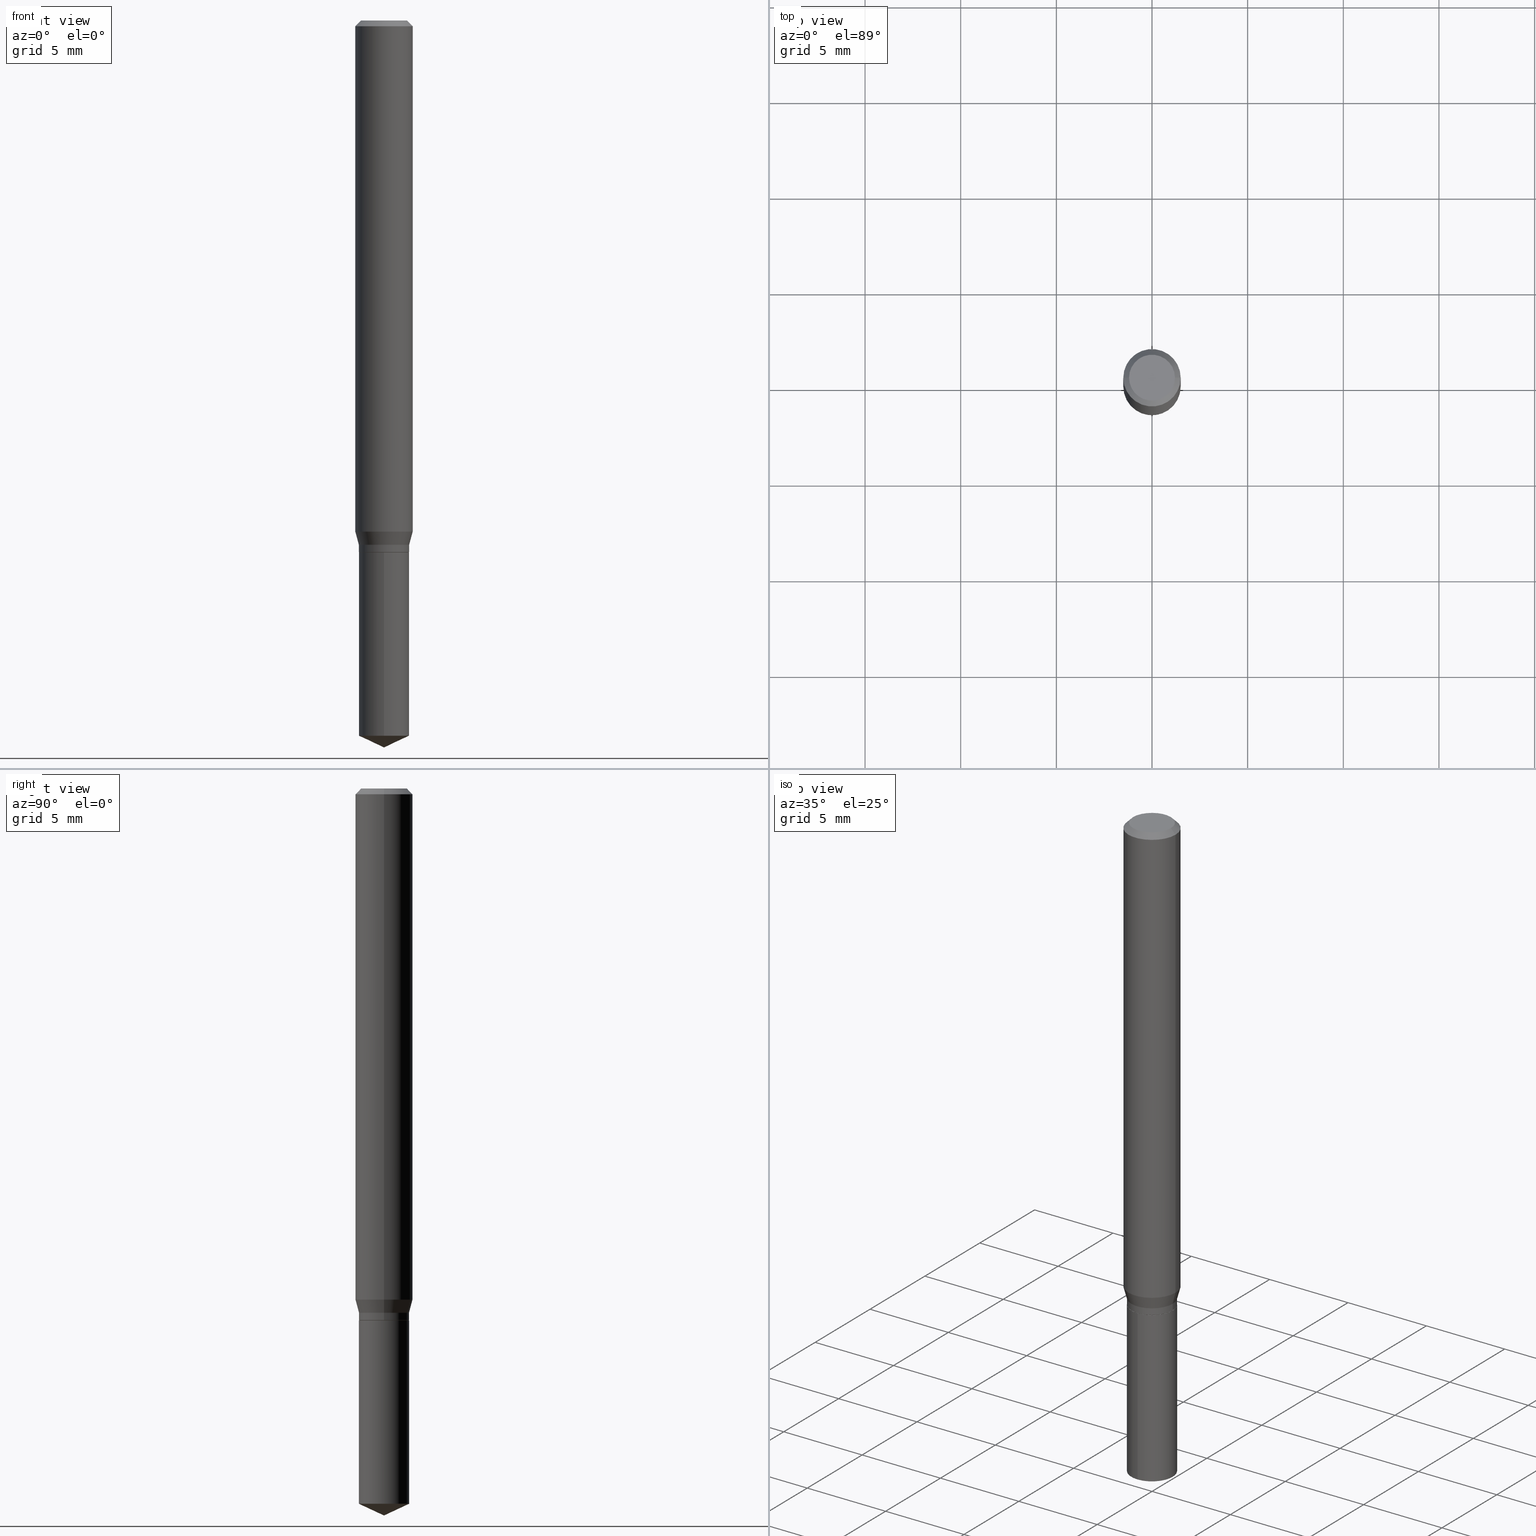
[diagram: canonical four-view strip — front | top / right | iso, engineering-drawing reading convention]
A machine part, canonical four-view strip (front | top / right | iso — engineering-drawing reading convention). The complete STEP part file that produces these views, byte-faithful:
ISO-10303-21;
HEADER;
FILE_DESCRIPTION (( 'STEP AP203' ),
    '1' );
FILE_NAME ('07676.STEP',
    '2024-04-24T00:50:57',
    ( '' ),
    ( '' ),
    'SwSTEP 2.0',
    'SolidWorks 2023',
    '' );
FILE_SCHEMA (( 'CONFIG_CONTROL_DESIGN' ));
ENDSEC;

DATA;
#1 = APPROVAL_DATE_TIME ( #174, #138 ) ;
#2 = CC_DESIGN_PERSON_AND_ORGANIZATION_ASSIGNMENT ( #187, #148, ( #243 ) ) ;
#3 = PERSON_AND_ORGANIZATION ( #69, #470 ) ;
#4 = DIRECTION ( 'NONE',  ( 1.000000000000000000, -6.982962677686271444E-15, 0.000000000000000000 ) ) ;
#5 = CARTESIAN_POINT ( 'NONE',  ( 2.888098660104664204E-31, -4.123439461173780263E-17, -0.01181000000000007218 ) ) ;
#6 = CIRCLE ( 'NONE', #269, 0.05175000000000000433 ) ;
#7 = CARTESIAN_POINT ( 'NONE',  ( 0.05905000000000013016, -4.084530494752366346E-15, -1.051756029104746748 ) ) ;
#8 = ORIENTED_EDGE ( 'NONE', *, *, #319, .F. ) ;
#9 = EDGE_CURVE ( 'NONE', #220, #147, #323, .T. ) ;
#10 = DESIGN_CONTEXT ( 'detailed design', #477, 'design' ) ;
#11 = DIRECTION ( 'NONE',  ( -2.445468806185136597E-29, 3.491481338843145583E-15, 1.000000000000000000 ) ) ;
#12 = FACE_OUTER_BOUND ( 'NONE', #222, .T. ) ;
#13 = DIRECTION ( 'NONE',  ( 1.000000000000000000, 0.000000000000000000, 0.000000000000000000 ) ) ;
#14 = VERTEX_POINT ( 'NONE', #7 ) ;
#15 = CLOSED_SHELL ( 'NONE', ( #334, #105, #398, #79, #226, #328, #189, #155, #420, #352, #405, #278 ) ) ;
#16 = AXIS2_PLACEMENT_3D ( 'NONE', #427, #344, #432 ) ;
#17 = CARTESIAN_POINT ( 'NONE',  ( 0.000000000000000000, 0.000000000000000000, 0.000000000000000000 ) ) ;
#18 = CYLINDRICAL_SURFACE ( 'NONE', #396, 0.05175000000000000433 ) ;
#19 = CYLINDRICAL_SURFACE ( 'NONE', #217, 0.05905000000000006771 ) ;
#20 = DIRECTION ( 'NONE',  ( 1.000000000000000000, -6.982962677686265133E-15, 0.000000000000000000 ) ) ;
#21 = EDGE_CURVE ( 'NONE', #147, #180, #290, .T. ) ;
#22 = LINE ( 'NONE', #90, #114 ) ;
#23 = LINE ( 'NONE', #336, #245 ) ;
#24 = EDGE_LOOP ( 'NONE', ( #167, #267, #463, #305 ) ) ;
#25 = LINE ( 'NONE', #163, #195 ) ;
#26 = CARTESIAN_POINT ( 'NONE',  ( 2.676565608369631794E-29, -3.821426325363822773E-15, -1.094499999999999806 ) ) ;
#27 = ORIENTED_EDGE ( 'NONE', *, *, #289, .F. ) ;
#28 = AXIS2_PLACEMENT_3D ( 'NONE', #5, #377, #170 ) ;
#29 = DIRECTION ( 'NONE',  ( -2.445468806185136877E-29, 3.491481338843145188E-15, 1.000000000000000000 ) ) ;
#30 = DIRECTION ( 'NONE',  ( -1.000000000000000000, 6.982962677686265922E-15, -4.876176775795935793E-29 ) ) ;
#31 = ORIENTED_EDGE ( 'NONE', *, *, #89, .F. ) ;
#32 = CARTESIAN_POINT ( 'NONE',  ( 0.04724000000000000421, -3.852183633974369345E-16, -3.380025165621689721E-19 ) ) ;
#33 = DATE_TIME_ROLE ( 'classification_date' ) ;
#34 = DIRECTION ( 'NONE',  ( 1.000000000000000000, -6.982962677686265922E-15, 4.876176775795935793E-29 ) ) ;
#35 = AXIS2_PLACEMENT_3D ( 'NONE', #109, #254, #300 ) ;
#36 = COORDINATED_UNIVERSAL_TIME_OFFSET ( 5, 0, .BEHIND. ) ;
#37 = APPROVAL ( #392, 'UNSPECIFIED' ) ;
#38 = DIRECTION ( 'NONE',  ( -2.445468806185136597E-29, 3.491481338843145583E-15, 1.000000000000000000 ) ) ;
#39 = DIRECTION ( 'NONE',  ( 1.000000000000000000, -6.982962677686271444E-15, 0.000000000000000000 ) ) ;
#40 = LOCAL_TIME ( 20, 50, 57.00000000000000000, #193 ) ;
#41 = CARTESIAN_POINT ( 'NONE',  ( -9.261924752013118283E-28, 1.322368428517963298E-13, 37.87397874015748300 ) ) ;
#42 = DATE_AND_TIME ( #78, #40 ) ;
#43 = CARTESIAN_POINT ( 'NONE',  ( 0.000000000000000000, 0.000000000000000000, 0.000000000000000000 ) ) ;
#44 = ORIENTED_EDGE ( 'NONE', *, *, #98, .T. ) ;
#45 = CARTESIAN_POINT ( 'NONE',  ( 2.676565608369632355E-29, -3.821426325363822773E-15, -1.094500000000000028 ) ) ;
#46 = DIRECTION ( 'NONE',  ( -2.445468806185136597E-29, 3.491481338843145583E-15, 1.000000000000000000 ) ) ;
#47 = ORIENTED_EDGE ( 'NONE', *, *, #486, .T. ) ;
#48 = CARTESIAN_POINT ( 'NONE',  ( 2.676565608369632355E-29, -3.821426325363822773E-15, -1.094500000000000028 ) ) ;
#49 = CIRCLE ( 'NONE', #330, 0.05175000000000000433 ) ;
#50 = VERTEX_POINT ( 'NONE', #173 ) ;
#51 = EDGE_CURVE ( 'NONE', #186, #50, #203, .T. ) ;
#52 = DIRECTION ( 'NONE',  ( -2.445458899330790108E-29, 3.491495526022433205E-15, 1.000000000000000000 ) ) ;
#53 = DIRECTION ( 'NONE',  ( -2.445458899330790108E-29, 3.491495526022433205E-15, 1.000000000000000000 ) ) ;
#54 = DIRECTION ( 'NONE',  ( 1.000000000000000000, -6.982962677686266711E-15, 4.876176775795936353E-29 ) ) ;
#55 = FACE_OUTER_BOUND ( 'NONE', #87, .T. ) ;
#56 = DATE_TIME_ROLE ( 'creation_date' ) ;
#57 = CIRCLE ( 'NONE', #194, 0.04724000000000000421 ) ;
#58 = CIRCLE ( 'NONE', #281, 0.05904999999999999832 ) ;
#59 = DIRECTION ( 'NONE',  ( -2.445458899330790108E-29, 3.491495526022433599E-15, 1.000000000000000000 ) ) ;
#60 = DIRECTION ( 'NONE',  ( -2.445458899330790108E-29, 3.491495526022433205E-15, 1.000000000000000000 ) ) ;
#61 = CARTESIAN_POINT ( 'NONE',  ( 2.888098660104664204E-31, -4.123439461173780263E-17, -0.01181000000000007218 ) ) ;
#62 = EDGE_LOOP ( 'NONE', ( #137, #229, #423, #83 ) ) ;
#63 = DIRECTION ( 'NONE',  ( -6.982962677686265133E-15, -1.000000000000000000, 2.639466660545181459E-15 ) ) ;
#64 = LOCAL_TIME ( 20, 50, 57.00000000000000000, #416 ) ;
#65 = CC_DESIGN_DATE_AND_TIME_ASSIGNMENT ( #169, #33, ( #370 ) ) ;
#66 = AXIS2_PLACEMENT_3D ( 'NONE', #437, #130, #30 ) ;
#67 = CARTESIAN_POINT ( 'NONE',  ( -3.613683185702283618E-16, -0.05175000000000515993, -1.471968578690478591 ) ) ;
#68 = CARTESIAN_POINT ( 'NONE',  ( 0.000000000000000000, 0.000000000000000000, 0.000000000000000000 ) ) ;
#69 = PERSON ( 'UNSPECIFIED', 'UNSPECIFIED', 'UNSPECIFIED', ('UNSPECIFIED'), ('UNSPECIFIED'), ('UNSPECIFIED') ) ;
#70 = APPROVAL_STATUS ( 'not_yet_approved' ) ;
#71 = CIRCLE ( 'NONE', #438, 0.05175000000000000433 ) ;
#72 = CONICAL_SURFACE ( 'NONE', #166, 0.05904999999999999832, 0.7853981633974452814 ) ;
#73 = ADVANCED_FACE ( 'NONE', ( #102 ), #210, .F. ) ;
#74 = ORIENTED_EDGE ( 'NONE', *, *, #443, .T. ) ;
#75 = CARTESIAN_POINT ( 'NONE',  ( 3.677058657558878194E-16, 0.05174999999999617406, -1.094500000000000028 ) ) ;
#76 = DIRECTION ( 'NONE',  ( 2.445468806185136597E-29, -3.491481338843145583E-15, -1.000000000000000000 ) ) ;
#77 = EDGE_CURVE ( 'NONE', #271, #122, #6, .T. ) ;
#78 = CALENDAR_DATE ( 2024, 23, 4 ) ;
#79 = ADVANCED_FACE ( 'NONE', ( #329 ), #469, .T. ) ;
#80 = CONICAL_SURFACE ( 'NONE', #139, 84.42940631927469042, 1.134464013796317561 ) ;
#81 = CARTESIAN_POINT ( 'NONE',  ( 0.05905000000000006771, -4.123439461173745257E-16, 2.879382386107503723E-30 ) ) ;
#82 = VERTEX_POINT ( 'NONE', #32 ) ;
#83 = ORIENTED_EDGE ( 'NONE', *, *, #200, .F. ) ;
#84 = CARTESIAN_POINT ( 'NONE',  ( 8.265746106709734507E-48, -1.180129479067563789E-33, -3.380025165646692144E-19 ) ) ;
#85 = APPLICATION_PROTOCOL_DEFINITION ( 'international standard', 'config_control_design', 1994, #477 ) ;
#86 = ORIENTED_EDGE ( 'NONE', *, *, #129, .T. ) ;
#87 = EDGE_LOOP ( 'NONE', ( #115, #74, #350, #234 ) ) ;
#88 = VERTEX_POINT ( 'NONE', #297 ) ;
#89 = EDGE_CURVE ( 'NONE', #382, #82, #57, .T. ) ;
#90 = CARTESIAN_POINT ( 'NONE',  ( -0.05904999999999999832, 3.711095515056362547E-16, -0.01181000000000007218 ) ) ;
#91 = MANIFOLD_SOLID_BREP ( 'Body-Move/Copy2[1]', #292 ) ;
#92 = CIRCLE ( 'NONE', #368, 0.05175000000000000433 ) ;
#93 = CIRCLE ( 'NONE', #197, 0.05175000000000000433 ) ;
#94 = DIMENSIONAL_EXPONENTS ( 1.000000000000000000, 0.000000000000000000, 0.000000000000000000, 0.000000000000000000, 0.000000000000000000, 0.000000000000000000, 0.000000000000000000 ) ;
#95 = CARTESIAN_POINT ( 'NONE',  ( 0.000000000000000000, 0.000000000000000000, 0.000000000000000000 ) ) ;
#96 = CARTESIAN_POINT ( 'NONE',  ( 0.05904999999999999832, -4.463468013801466955E-16, -0.01181000000000007218 ) ) ;
#97 = VERTEX_POINT ( 'NONE', #67 ) ;
#98 = EDGE_CURVE ( 'NONE', #247, #271, #339, .T. ) ;
#99 = CARTESIAN_POINT ( 'NONE',  ( 2.675342873966538993E-29, -3.819680584694400481E-15, -1.093999999999999861 ) ) ;
#100 =( GEOMETRIC_REPRESENTATION_CONTEXT ( 3 ) GLOBAL_UNCERTAINTY_ASSIGNED_CONTEXT ( ( #108 ) ) GLOBAL_UNIT_ASSIGNED_CONTEXT ( ( #363, #232, #265 ) ) REPRESENTATION_CONTEXT ( 'NONE', 'WORKASPACE' ) );
#101 = DIRECTION ( 'NONE',  ( -1.000000000000000000, 6.982962677686266711E-15, 0.000000000000000000 ) ) ;
#102 = FACE_OUTER_BOUND ( 'NONE', #311, .T. ) ;
#103 = ADVANCED_FACE ( 'NONE', ( #246 ), #456, .T. ) ;
#104 = DIRECTION ( 'NONE',  ( -2.445468806185136597E-29, 3.491481338843145583E-15, 1.000000000000000000 ) ) ;
#105 = ADVANCED_FACE ( 'NONE', ( #12 ), #238, .T. ) ;
#106 = VECTOR ( 'NONE', #488, 39.37007874015748143 ) ;
#107 = LOCAL_TIME ( 20, 50, 57.00000000000000000, #161 ) ;
#108 = UNCERTAINTY_MEASURE_WITH_UNIT (LENGTH_MEASURE( 1.000000000000000082E-05 ), #363, 'distance_accuracy_value', 'NONE');
#109 = CARTESIAN_POINT ( 'NONE',  ( 2.676565608369631794E-29, -3.821426325363822773E-15, -1.094499999999999806 ) ) ;
#110 = CC_DESIGN_PERSON_AND_ORGANIZATION_ASSIGNMENT ( #3, #345, ( #331 ) ) ;
#111 = DIRECTION ( 'NONE',  ( 1.000000000000000000, -6.982962677686266711E-15, 0.000000000000000000 ) ) ;
#112 = APPROVAL_ROLE ( '' ) ;
#113 = DIRECTION ( 'NONE',  ( -2.445468806185136597E-29, 3.491481338843145583E-15, 1.000000000000000000 ) ) ;
#114 = VECTOR ( 'NONE', #364, 39.37007874015748143 ) ;
#115 = ORIENTED_EDGE ( 'NONE', *, *, #408, .T. ) ;
#116 = PRODUCT_RELATED_PRODUCT_CATEGORY ( 'detail', '', ( #177 ) ) ;
#117 = FACE_OUTER_BOUND ( 'NONE', #120, .T. ) ;
#118 = EDGE_CURVE ( 'NONE', #50, #186, #71, .T. ) ;
#119 = CARTESIAN_POINT ( 'NONE',  ( 0.000000000000000000, 0.000000000000000000, 0.000000000000000000 ) ) ;
#120 = EDGE_LOOP ( 'NONE', ( #296, #153, #235, #351 ) ) ;
#121 = EDGE_LOOP ( 'NONE', ( #228, #31, #236, #436 ) ) ;
#122 = VERTEX_POINT ( 'NONE', #308 ) ;
#123 = CIRCLE ( 'NONE', #144, 0.05905000000000013016 ) ;
#124 = DIRECTION ( 'NONE',  ( 1.000000000000000000, -6.982962677686271444E-15, 0.000000000000000000 ) ) ;
#125 = LINE ( 'NONE', #322, #293 ) ;
#126 = EDGE_LOOP ( 'NONE', ( #428, #362, #357, #270 ) ) ;
#127 = APPROVAL_PERSON_ORGANIZATION ( #474, #136, #284 ) ;
#128 = AXIS2_PLACEMENT_3D ( 'NONE', #310, #76, #434 ) ;
#129 = EDGE_CURVE ( 'NONE', #97, #88, #92, .T. ) ;
#130 = DIRECTION ( 'NONE',  ( 2.438088387897960049E-29, -3.491481338843145188E-15, -1.000000000000000000 ) ) ;
#131 = DIRECTION ( 'NONE',  ( -0.2588190451025213501, 5.211531920934551042E-15, 0.9659258262890682012 ) ) ;
#132 = DIRECTION ( 'NONE',  ( -2.445458899330790108E-29, 3.491495526022433205E-15, 1.000000000000000000 ) ) ;
#133 = LINE ( 'NONE', #367, #348 ) ;
#134 = APPROVAL_STATUS ( 'not_yet_approved' ) ;
#135 = FACE_OUTER_BOUND ( 'NONE', #24, .T. ) ;
#136 = APPROVAL ( #134, 'UNSPECIFIED' ) ;
#137 = ORIENTED_EDGE ( 'NONE', *, *, #443, .F. ) ;
#138 = APPROVAL ( #70, 'UNSPECIFIED' ) ;
#139 = AXIS2_PLACEMENT_3D ( 'NONE', #41, #353, #356 ) ;
#140 = AXIS2_PLACEMENT_3D ( 'NONE', #224, #354, #268 ) ;
#141 = CALENDAR_DATE ( 2024, 23, 4 ) ;
#142 = SHAPE_DEFINITION_REPRESENTATION ( #209, #337 ) ;
#143 = DIRECTION ( 'NONE',  ( -2.445468806185136597E-29, 3.491481338843145583E-15, 1.000000000000000000 ) ) ;
#144 = AXIS2_PLACEMENT_3D ( 'NONE', #201, #11, #150 ) ;
#145 = ORIENTED_EDGE ( 'NONE', *, *, #118, .F. ) ;
#146 = CARTESIAN_POINT ( 'NONE',  ( 2.676565608369631794E-29, -3.821426325363822773E-15, -1.094499999999999806 ) ) ;
#147 = VERTEX_POINT ( 'NONE', #263 ) ;
#148 = PERSON_AND_ORGANIZATION_ROLE ( 'creator' ) ;
#149 = ORIENTED_EDGE ( 'NONE', *, *, #316, .F. ) ;
#150 = DIRECTION ( 'NONE',  ( 1.000000000000000000, -6.982962677686265133E-15, 0.000000000000000000 ) ) ;
#151 = EDGE_CURVE ( 'NONE', #14, #188, #425, .T. ) ;
#152 = ORIENTED_EDGE ( 'NONE', *, *, #77, .F. ) ;
#153 = ORIENTED_EDGE ( 'NONE', *, *, #326, .T. ) ;
#154 = AXIS2_PLACEMENT_3D ( 'NONE', #475, #60, #164 ) ;
#155 = ADVANCED_FACE ( 'NONE', ( #117 ), #421, .T. ) ;
#156 = FACE_OUTER_BOUND ( 'NONE', #208, .T. ) ;
#157 = ORIENTED_EDGE ( 'NONE', *, *, #446, .T. ) ;
#158 = DIRECTION ( 'NONE',  ( -2.445468806185136597E-29, 3.491481338843145583E-15, 1.000000000000000000 ) ) ;
#159 = EDGE_CURVE ( 'NONE', #82, #382, #250, .T. ) ;
#160 = AXIS2_PLACEMENT_3D ( 'NONE', #490, #143, #306 ) ;
#161 = COORDINATED_UNIVERSAL_TIME_OFFSET ( 5, 0, .BEHIND. ) ;
#162 = CARTESIAN_POINT ( 'NONE',  ( 3.658651059288794515E-29, -5.223626456482161457E-15, -1.496099999999999985 ) ) ;
#163 = CARTESIAN_POINT ( 'NONE',  ( 0.05175000000000000433, -3.613683185702643042E-16, 2.523421481474396857E-30 ) ) ;
#164 = DIRECTION ( 'NONE',  ( -6.982962677686265133E-15, -1.000000000000000000, 5.278933321090362918E-15 ) ) ;
#165 = DIRECTION ( 'NONE',  ( -2.445458899330790108E-29, 3.491495526022433205E-15, 1.000000000000000000 ) ) ;
#166 = AXIS2_PLACEMENT_3D ( 'NONE', #61, #402, #101 ) ;
#167 = ORIENTED_EDGE ( 'NONE', *, *, #446, .F. ) ;
#168 = DIRECTION ( 'NONE',  ( 1.000000000000000000, -6.982962677686266711E-15, 4.876185090822587894E-29 ) ) ;
#169 = DATE_AND_TIME ( #375, #64 ) ;
#170 = DIRECTION ( 'NONE',  ( 1.000000000000000000, -6.982962677686266711E-15, 0.000000000000000000 ) ) ;
#171 = ADVANCED_FACE ( 'NONE', ( #223 ), #80, .T. ) ;
#172 = CARTESIAN_POINT ( 'NONE',  ( 3.658672935554494692E-29, -5.223595400746700193E-15, -1.496099999999999985 ) ) ;
#173 = CARTESIAN_POINT ( 'NONE',  ( -3.613683185702375323E-16, -0.05175000000000382766, -1.094499999999999806 ) ) ;
#174 = DATE_AND_TIME ( #216, #460 ) ;
#175 = PERSON_AND_ORGANIZATION_ROLE ( 'classification_officer' ) ;
#176 = DIRECTION ( 'NONE',  ( 1.000000000000000000, -6.982962677686265922E-15, 4.876176775795935793E-29 ) ) ;
#177 = PRODUCT ( '07676', '07676', '', ( #466 ) ) ;
#178 = CARTESIAN_POINT ( 'NONE',  ( 0.05175000000000000433, -4.181048903264665130E-15, -1.093999999999999861 ) ) ;
#179 = EDGE_CURVE ( 'NONE', #448, #88, #261, .T. ) ;
#180 = VERTEX_POINT ( 'NONE', #178 ) ;
#181 = ORIENTED_EDGE ( 'NONE', *, *, #159, .F. ) ;
#182 = CC_DESIGN_APPROVAL ( #138, ( #370 ) ) ;
#183 = VECTOR ( 'NONE', #256, 39.37007874015747433 ) ;
#184 = CC_DESIGN_APPROVAL ( #136, ( #331 ) ) ;
#185 = EDGE_LOOP ( 'NONE', ( #149, #325, #429 ) ) ;
#186 = VERTEX_POINT ( 'NONE', #75 ) ;
#187 = PERSON_AND_ORGANIZATION ( #69, #470 ) ;
#188 = VERTEX_POINT ( 'NONE', #343 ) ;
#189 = ADVANCED_FACE ( 'NONE', ( #347 ), #379, .T. ) ;
#190 = DIRECTION ( 'NONE',  ( -2.445458899330790108E-29, 3.491495526022433205E-15, 1.000000000000000000 ) ) ;
#191 = ORIENTED_EDGE ( 'NONE', *, *, #376, .T. ) ;
#192 = DIRECTION ( 'NONE',  ( -2.445468806185136597E-29, 3.491481338843145583E-15, 1.000000000000000000 ) ) ;
#193 = COORDINATED_UNIVERSAL_TIME_OFFSET ( 5, 0, .BEHIND. ) ;
#194 = AXIS2_PLACEMENT_3D ( 'NONE', #483, #104, #168 ) ;
#195 = VECTOR ( 'NONE', #327, 39.37007874015748143 ) ;
#196 = VERTEX_POINT ( 'NONE', #241 ) ;
#197 = AXIS2_PLACEMENT_3D ( 'NONE', #242, #476, #479 ) ;
#198 = EDGE_CURVE ( 'NONE', #82, #188, #365, .T. ) ;
#199 = VERTEX_POINT ( 'NONE', #205 ) ;
#200 = EDGE_CURVE ( 'NONE', #247, #180, #49, .T. ) ;
#201 = CARTESIAN_POINT ( 'NONE',  ( 2.572036560892804425E-29, -3.672186548634991426E-15, -1.051756029104746748 ) ) ;
#202 = DIRECTION ( 'NONE',  ( -0.7071067811864267805, 7.493145998869918709E-15, 0.7071067811866682540 ) ) ;
#203 = CIRCLE ( 'NONE', #244, 0.05175000000000000433 ) ;
#204 = CIRCLE ( 'NONE', #28, 0.05904999999999999832 ) ;
#205 = CARTESIAN_POINT ( 'NONE',  ( -0.05905000000000013016, -3.252611063168651144E-15, -1.051756029104746748 ) ) ;
#206 = ORIENTED_EDGE ( 'NONE', *, *, #51, .T. ) ;
#207 = DIRECTION ( 'NONE',  ( -2.445468806185136597E-29, 3.491481338843145583E-15, 1.000000000000000000 ) ) ;
#208 = EDGE_LOOP ( 'NONE', ( #275, #355 ) ) ;
#209 = PRODUCT_DEFINITION_SHAPE ( 'NONE', 'NONE',  #243 ) ;
#210 = PLANE ( 'NONE',  #35 ) ;
#211 = VECTOR ( 'NONE', #464, 39.37007874015748143 ) ;
#212 = AXIS2_PLACEMENT_3D ( 'NONE', #435, #346, #4 ) ;
#213 = CARTESIAN_POINT ( 'NONE',  ( 0.05175000000000000433, -4.128676683182017657E-15, -1.078999999999999959 ) ) ;
#214 = LINE ( 'NONE', #372, #410 ) ;
#215 = ORIENTED_EDGE ( 'NONE', *, *, #478, .F. ) ;
#216 = CALENDAR_DATE ( 2024, 23, 4 ) ;
#217 = AXIS2_PLACEMENT_3D ( 'NONE', #95, #38, #54 ) ;
#218 = FACE_OUTER_BOUND ( 'NONE', #62, .T. ) ;
#219 = CC_DESIGN_DATE_AND_TIME_ASSIGNMENT ( #399, #56, ( #243 ) ) ;
#220 = VERTEX_POINT ( 'NONE', #248 ) ;
#221 = ORIENTED_EDGE ( 'NONE', *, *, #118, .T. ) ;
#222 = EDGE_LOOP ( 'NONE', ( #181, #231, #266, #472 ) ) ;
#223 = FACE_OUTER_BOUND ( 'NONE', #390, .T. ) ;
#224 = CARTESIAN_POINT ( 'NONE',  ( 2.676565608369631794E-29, -3.821426325363822773E-15, -1.094499999999999806 ) ) ;
#225 = AXIS2_PLACEMENT_3D ( 'NONE', #84, #46, #315 ) ;
#226 = ADVANCED_FACE ( 'NONE', ( #255 ), #454, .T. ) ;
#227 = CIRCLE ( 'NONE', #299, 0.05905000000000013016 ) ;
#228 = ORIENTED_EDGE ( 'NONE', *, *, #198, .F. ) ;
#229 = ORIENTED_EDGE ( 'NONE', *, *, #9, .T. ) ;
#230 = EDGE_CURVE ( 'NONE', #196, #188, #204, .T. ) ;
#231 = ORIENTED_EDGE ( 'NONE', *, *, #198, .T. ) ;
#232 =( NAMED_UNIT ( * ) PLANE_ANGLE_UNIT ( ) SI_UNIT ( $, .RADIAN. ) );
#233 = FACE_OUTER_BOUND ( 'NONE', #287, .T. ) ;
#234 = ORIENTED_EDGE ( 'NONE', *, *, #21, .F. ) ;
#235 = ORIENTED_EDGE ( 'NONE', *, *, #151, .T. ) ;
#236 = ORIENTED_EDGE ( 'NONE', *, *, #349, .T. ) ;
#237 = FACE_OUTER_BOUND ( 'NONE', #126, .T. ) ;
#238 = CONICAL_SURFACE ( 'NONE', #128, 0.05904999999999999832, 0.7853981633974452814 ) ;
#239 = CIRCLE ( 'NONE', #16, 0.05175000000000000433 ) ;
#240 = EDGE_LOOP ( 'NONE', ( #86, #157, #145, #27 ) ) ;
#241 = CARTESIAN_POINT ( 'NONE',  ( -0.05904999999999999832, -1.437134986157024295E-15, -0.01181000000000007218 ) ) ;
#242 = CARTESIAN_POINT ( 'NONE',  ( 2.675342873966538993E-29, -3.819680584694400481E-15, -1.093999999999999861 ) ) ;
#243 = PRODUCT_DEFINITION ( 'UNKNOWN', '', #331, #10 ) ;
#244 = AXIS2_PLACEMENT_3D ( 'NONE', #26, #165, #63 ) ;
#245 = VECTOR ( 'NONE', #59, 39.37007874015748143 ) ;
#246 = FACE_OUTER_BOUND ( 'NONE', #185, .T. ) ;
#247 = VERTEX_POINT ( 'NONE', #417 ) ;
#248 = CARTESIAN_POINT ( 'NONE',  ( -0.05124999999999999695, -3.454623946112660495E-15, -1.094500000000000028 ) ) ;
#249 = APPROVAL_PERSON_ORGANIZATION ( #414, #138, #112 ) ;
#250 = CIRCLE ( 'NONE', #225, 0.04724000000000000421 ) ;
#251 = APPROVAL_PERSON_ORGANIZATION ( #387, #37, #422 ) ;
#252 = DIRECTION ( 'NONE',  ( 6.439704144417035086E-15, 0.9063077870366528233, 0.4226182617406932240 ) ) ;
#253 = EDGE_CURVE ( 'NONE', #188, #196, #58, .T. ) ;
#254 = DIRECTION ( 'NONE',  ( 2.445458899330789267E-29, -3.491495526022433599E-15, -1.000000000000000000 ) ) ;
#255 = FACE_OUTER_BOUND ( 'NONE', #317, .T. ) ;
#256 = DIRECTION ( 'NONE',  ( 0.2588190451025213501, 1.565188264969621968E-15, 0.9659258262890682012 ) ) ;
#257 = DIRECTION ( 'NONE',  ( -2.445468806185136597E-29, 3.491481338843145583E-15, 1.000000000000000000 ) ) ;
#258 = PERSON_AND_ORGANIZATION ( #69, #470 ) ;
#259 = PERSON_AND_ORGANIZATION_ROLE ( 'creator' ) ;
#260 = CARTESIAN_POINT ( 'NONE',  ( -0.05175000000000000433, -3.425788608897225557E-15, -1.078999999999999959 ) ) ;
#261 = LINE ( 'NONE', #172, #298 ) ;
#262 = VECTOR ( 'NONE', #400, 39.37007874015748143 ) ;
#263 = CARTESIAN_POINT ( 'NONE',  ( 0.05124999999999999695, -4.179303162595244416E-15, -1.094500000000000028 ) ) ;
#264 = DIRECTION ( 'NONE',  ( 0.000000000000000000, 0.000000000000000000, 1.000000000000000000 ) ) ;
#265 =( NAMED_UNIT ( * ) SI_UNIT ( $, .STERADIAN. ) SOLID_ANGLE_UNIT ( ) );
#266 = ORIENTED_EDGE ( 'NONE', *, *, #253, .T. ) ;
#267 = ORIENTED_EDGE ( 'NONE', *, *, #452, .T. ) ;
#268 = DIRECTION ( 'NONE',  ( -6.982962677686265133E-15, -1.000000000000000000, 2.639466660545181459E-15 ) ) ;
#269 = AXIS2_PLACEMENT_3D ( 'NONE', #374, #257, #369 ) ;
#270 = ORIENTED_EDGE ( 'NONE', *, *, #151, .F. ) ;
#271 = VERTEX_POINT ( 'NONE', #260 ) ;
#272 = ORIENTED_EDGE ( 'NONE', *, *, #326, .F. ) ;
#273 = DIRECTION ( 'NONE',  ( 1.000000000000000000, -6.982962677686266711E-15, 4.876176775795936353E-29 ) ) ;
#274 = PERSON_AND_ORGANIZATION ( #69, #470 ) ;
#275 = ORIENTED_EDGE ( 'NONE', *, *, #89, .T. ) ;
#276 = DIRECTION ( 'NONE',  ( -6.328713451373378056E-15, -0.9063077870366498257, 0.4226182617406994968 ) ) ;
#277 = PLANE ( 'NONE',  #366 ) ;
#278 = ADVANCED_FACE ( 'NONE', ( #218 ), #426, .T. ) ;
#279 = FACE_OUTER_BOUND ( 'NONE', #295, .T. ) ;
#280 = LOCAL_TIME ( 20, 50, 57.00000000000000000, #301 ) ;
#281 = AXIS2_PLACEMENT_3D ( 'NONE', #340, #113, #111 ) ;
#282 = CALENDAR_DATE ( 2024, 23, 4 ) ;
#283 = CARTESIAN_POINT ( 'NONE',  ( 2.676565608369631794E-29, -3.821426325363822773E-15, -1.094499999999999806 ) ) ;
#284 = APPROVAL_ROLE ( '' ) ;
#285 = CC_DESIGN_PERSON_AND_ORGANIZATION_ASSIGNMENT ( #274, #431, ( #177 ) ) ;
#286 = ORIENTED_EDGE ( 'NONE', *, *, #452, .F. ) ;
#287 = EDGE_LOOP ( 'NONE', ( #338, #449 ) ) ;
#288 = FACE_OUTER_BOUND ( 'NONE', #121, .T. ) ;
#289 = EDGE_CURVE ( 'NONE', #97, #50, #458, .T. ) ;
#290 = LINE ( 'NONE', #403, #106 ) ;
#291 = CARTESIAN_POINT ( 'NONE',  ( -0.04724000000000000421, 3.504923541997677355E-16, -3.380025165670481712E-19 ) ) ;
#292 = CLOSED_SHELL ( 'NONE', ( #383, #103, #171, #459, #73 ) ) ;
#293 = VECTOR ( 'NONE', #393, 39.37007874015748143 ) ;
#294 = LINE ( 'NONE', #213, #183 ) ;
#295 = EDGE_LOOP ( 'NONE', ( #320, #314, #444, #152 ) ) ;
#296 = ORIENTED_EDGE ( 'NONE', *, *, #394, .F. ) ;
#297 = CARTESIAN_POINT ( 'NONE',  ( 3.677058657558878687E-16, 0.05174999999999486955, -1.471968578690479257 ) ) ;
#298 = VECTOR ( 'NONE', #252, 39.37007874015748854 ) ;
#299 = AXIS2_PLACEMENT_3D ( 'NONE', #395, #468, #20 ) ;
#300 = DIRECTION ( 'NONE',  ( 6.982962677686265922E-15, 1.000000000000000000, -3.491495526022433599E-15 ) ) ;
#301 = COORDINATED_UNIVERSAL_TIME_OFFSET ( 5, 0, .BEHIND. ) ;
#302 = PERSON_AND_ORGANIZATION ( #69, #470 ) ;
#303 = DIRECTION ( 'NONE',  ( -2.445468806185136597E-29, 3.491481338843145583E-15, 1.000000000000000000 ) ) ;
#304 = DATE_AND_TIME ( #141, #280 ) ;
#305 = ORIENTED_EDGE ( 'NONE', *, *, #51, .F. ) ;
#306 = DIRECTION ( 'NONE',  ( 1.000000000000000000, -6.982962677686271444E-15, 0.000000000000000000 ) ) ;
#307 = VECTOR ( 'NONE', #29, 39.37007874015748143 ) ;
#308 = CARTESIAN_POINT ( 'NONE',  ( 0.05175000000000000433, -4.128676683182017657E-15, -1.078999999999999959 ) ) ;
#309 = CYLINDRICAL_SURFACE ( 'NONE', #140, 0.05175000000000000433 ) ;
#310 = CARTESIAN_POINT ( 'NONE',  ( 2.888098660104664204E-31, -4.123439461173780263E-17, -0.01181000000000007218 ) ) ;
#311 = EDGE_LOOP ( 'NONE', ( #221, #206 ) ) ;
#312 = ORIENTED_EDGE ( 'NONE', *, *, #316, .T. ) ;
#313 = APPLICATION_PROTOCOL_DEFINITION ( 'international standard', 'config_control_design', 1994, #442 ) ;
#314 = ORIENTED_EDGE ( 'NONE', *, *, #200, .T. ) ;
#315 = DIRECTION ( 'NONE',  ( 1.000000000000000000, -6.982962677686266711E-15, 4.876185090822587894E-29 ) ) ;
#316 = EDGE_CURVE ( 'NONE', #448, #97, #335, .T. ) ;
#317 = EDGE_LOOP ( 'NONE', ( #191, #44, #318, #419 ) ) ;
#318 = ORIENTED_EDGE ( 'NONE', *, *, #384, .F. ) ;
#319 = EDGE_CURVE ( 'NONE', #14, #199, #227, .T. ) ;
#320 = ORIENTED_EDGE ( 'NONE', *, *, #98, .F. ) ;
#321 = DIRECTION ( 'NONE',  ( -2.445468806185136597E-29, 3.491481338843145583E-15, 1.000000000000000000 ) ) ;
#322 = CARTESIAN_POINT ( 'NONE',  ( -0.05905000000000006771, 4.195754854663396409E-16, -2.904631170795525045E-30 ) ) ;
#323 = CIRCLE ( 'NONE', #360, 0.05124999999999999695 ) ;
#324 = CC_DESIGN_APPROVAL ( #37, ( #243 ) ) ;
#325 = ORIENTED_EDGE ( 'NONE', *, *, #179, .T. ) ;
#326 = EDGE_CURVE ( 'NONE', #199, #14, #123, .T. ) ;
#327 = DIRECTION ( 'NONE',  ( -2.445468806185136877E-29, 3.491481338843145188E-15, 1.000000000000000000 ) ) ;
#328 = ADVANCED_FACE ( 'NONE', ( #279 ), #433, .T. ) ;
#329 = FACE_OUTER_BOUND ( 'NONE', #480, .T. ) ;
#330 = AXIS2_PLACEMENT_3D ( 'NONE', #99, #303, #412 ) ;
#331 = PRODUCT_DEFINITION_FORMATION_WITH_SPECIFIED_SOURCE ( 'ANY', '', #177, .NOT_KNOWN. ) ;
#332 =( LENGTH_UNIT ( ) NAMED_UNIT ( * ) SI_UNIT ( $, .METRE. ) );
#333 = CARTESIAN_POINT ( 'NONE',  ( 2.638660841873762235E-29, -3.767308364611753796E-15, -1.078999999999999959 ) ) ;
#334 = ADVANCED_FACE ( 'NONE', ( #55 ), #418, .T. ) ;
#335 = LINE ( 'NONE', #484, #342 ) ;
#336 = CARTESIAN_POINT ( 'NONE',  ( 3.677058657558785503E-16, 0.05174999999999617406, -1.094500000000000028 ) ) ;
#337 = ADVANCED_BREP_SHAPE_REPRESENTATION ( '07676', ( #91, #424, #481 ), #100 ) ;
#338 = ORIENTED_EDGE ( 'NONE', *, *, #408, .F. ) ;
#339 = LINE ( 'NONE', #373, #307 ) ;
#340 = CARTESIAN_POINT ( 'NONE',  ( 2.888098660104664204E-31, -4.123439461173780263E-17, -0.01181000000000007218 ) ) ;
#341 = AXIS2_PLACEMENT_3D ( 'NONE', #406, #132, #381 ) ;
#342 = VECTOR ( 'NONE', #276, 39.37007874015748854 ) ;
#343 = CARTESIAN_POINT ( 'NONE',  ( 0.05904999999999999832, -4.535783407291118600E-16, -0.01181000000000007218 ) ) ;
#344 = DIRECTION ( 'NONE',  ( -2.445468806185136597E-29, 3.491481338843145583E-15, 1.000000000000000000 ) ) ;
#345 = PERSON_AND_ORGANIZATION_ROLE ( 'design_supplier' ) ;
#346 = DIRECTION ( 'NONE',  ( -2.445468806185136597E-29, 3.491481338843145583E-15, 1.000000000000000000 ) ) ;
#347 = FACE_OUTER_BOUND ( 'NONE', #409, .T. ) ;
#348 = VECTOR ( 'NONE', #131, 39.37007874015747433 ) ;
#349 = EDGE_CURVE ( 'NONE', #382, #196, #22, .T. ) ;
#350 = ORIENTED_EDGE ( 'NONE', *, *, #376, .F. ) ;
#351 = ORIENTED_EDGE ( 'NONE', *, *, #230, .F. ) ;
#352 = ADVANCED_FACE ( 'NONE', ( #156 ), #467, .F. ) ;
#353 = DIRECTION ( 'NONE',  ( -2.445458899330790108E-29, 3.491495526022433205E-15, 1.000000000000000000 ) ) ;
#354 = DIRECTION ( 'NONE',  ( -2.445458899330790108E-29, 3.491495526022433205E-15, 1.000000000000000000 ) ) ;
#355 = ORIENTED_EDGE ( 'NONE', *, *, #159, .T. ) ;
#356 = DIRECTION ( 'NONE',  ( -6.982962677686268288E-15, -1.000000000000000000, 3.520397390770439276E-15 ) ) ;
#357 = ORIENTED_EDGE ( 'NONE', *, *, #253, .F. ) ;
#358 = LENGTH_MEASURE_WITH_UNIT ( LENGTH_MEASURE( 0.02539999999999999897 ), #332 );
#359 = APPROVAL_DATE_TIME ( #42, #37 ) ;
#360 = AXIS2_PLACEMENT_3D ( 'NONE', #48, #457, #39 ) ;
#361 = CIRCLE ( 'NONE', #154, 0.05175000000000000433 ) ;
#362 = ORIENTED_EDGE ( 'NONE', *, *, #394, .T. ) ;
#363 =( CONVERSION_BASED_UNIT ( 'INCH', #358 ) LENGTH_UNIT ( ) NAMED_UNIT ( #94 ) );
#364 = DIRECTION ( 'NONE',  ( -0.7071067811865453523, 2.468850131082234184E-15, -0.7071067811865496822 ) ) ;
#365 = LINE ( 'NONE', #96, #262 ) ;
#366 = AXIS2_PLACEMENT_3D ( 'NONE', #471, #380, #176 ) ;
#367 = CARTESIAN_POINT ( 'NONE',  ( -0.05175000000000000433, -3.399602498855901821E-15, -1.078999999999999959 ) ) ;
#368 = AXIS2_PLACEMENT_3D ( 'NONE', #430, #190, #389 ) ;
#369 = DIRECTION ( 'NONE',  ( 1.000000000000000000, -6.982962677686261977E-15, 0.000000000000000000 ) ) ;
#370 = SECURITY_CLASSIFICATION ( '', '', #453 ) ;
#371 = DIRECTION ( 'NONE',  ( -2.445458899330790108E-29, 3.491495526022433599E-15, 1.000000000000000000 ) ) ;
#372 = CARTESIAN_POINT ( 'NONE',  ( -0.05124999999999999695, -3.457273173286771302E-15, -1.094500000000000028 ) ) ;
#373 = CARTESIAN_POINT ( 'NONE',  ( -0.05175000000000000433, 3.677058657558518770E-16, -2.545548909206914027E-30 ) ) ;
#374 = CARTESIAN_POINT ( 'NONE',  ( 2.638660841873762235E-29, -3.767308364611753796E-15, -1.078999999999999959 ) ) ;
#375 = CALENDAR_DATE ( 2024, 23, 4 ) ;
#376 = EDGE_CURVE ( 'NONE', #180, #247, #93, .T. ) ;
#377 = DIRECTION ( 'NONE',  ( -2.445468806185136597E-29, 3.491481338843145583E-15, 1.000000000000000000 ) ) ;
#378 = APPROVAL_DATE_TIME ( #304, #136 ) ;
#379 = CONICAL_SURFACE ( 'NONE', #386, 0.05175000000000000433, 0.2617993877991500740 ) ;
#380 = DIRECTION ( 'NONE',  ( -2.438088387897960049E-29, 3.491481338843145188E-15, 1.000000000000000000 ) ) ;
#381 = DIRECTION ( 'NONE',  ( -6.982962677686268288E-15, -1.000000000000000000, 3.520397390770439276E-15 ) ) ;
#382 = VERTEX_POINT ( 'NONE', #291 ) ;
#383 = ADVANCED_FACE ( 'NONE', ( #404 ), #309, .T. ) ;
#384 = EDGE_CURVE ( 'NONE', #122, #271, #239, .T. ) ;
#385 = ORIENTED_EDGE ( 'NONE', *, *, #179, .F. ) ;
#386 = AXIS2_PLACEMENT_3D ( 'NONE', #415, #207, #440 ) ;
#387 = PERSON_AND_ORGANIZATION ( #69, #470 ) ;
#388 = ORIENTED_EDGE ( 'NONE', *, *, #77, .T. ) ;
#389 = DIRECTION ( 'NONE',  ( -6.982962677686265133E-15, -1.000000000000000000, 5.278933321090362918E-15 ) ) ;
#390 = EDGE_LOOP ( 'NONE', ( #385, #312, #286 ) ) ;
#391 = DIRECTION ( 'NONE',  ( 1.000000000000000000, -6.982962677686265922E-15, 4.876176775795935793E-29 ) ) ;
#392 = APPROVAL_STATUS ( 'not_yet_approved' ) ;
#393 = DIRECTION ( 'NONE',  ( -2.445468806185136877E-29, 3.491481338843145188E-15, 1.000000000000000000 ) ) ;
#394 = EDGE_CURVE ( 'NONE', #199, #196, #125, .T. ) ;
#395 = CARTESIAN_POINT ( 'NONE',  ( 2.572036560892804425E-29, -3.672186548634991426E-15, -1.051756029104746748 ) ) ;
#396 = AXIS2_PLACEMENT_3D ( 'NONE', #283, #53, #473 ) ;
#397 = ORIENTED_EDGE ( 'NONE', *, *, #478, .T. ) ;
#398 = ADVANCED_FACE ( 'NONE', ( #237 ), #19, .T. ) ;
#399 = DATE_AND_TIME ( #282, #107 ) ;
#400 = DIRECTION ( 'NONE',  ( 0.7071067811865453523, -7.319954787623248157E-15, -0.7071067811865496822 ) ) ;
#401 = AXIS2_PLACEMENT_3D ( 'NONE', #17, #158, #391 ) ;
#402 = DIRECTION ( 'NONE',  ( 2.445468806185136597E-29, -3.491481338843145583E-15, -1.000000000000000000 ) ) ;
#403 = CARTESIAN_POINT ( 'NONE',  ( 0.05124999999999999695, -4.179303162595244416E-15, -1.094500000000000028 ) ) ;
#404 = FACE_OUTER_BOUND ( 'NONE', #240, .T. ) ;
#405 = ADVANCED_FACE ( 'NONE', ( #233 ), #277, .F. ) ;
#406 = CARTESIAN_POINT ( 'NONE',  ( -9.261924752013118283E-28, 1.322368428517963298E-13, 37.87397874015748300 ) ) ;
#407 = CARTESIAN_POINT ( 'NONE',  ( -3.613683185702375323E-16, -0.05175000000000382766, -1.094499999999999806 ) ) ;
#408 = EDGE_CURVE ( 'NONE', #147, #220, #447, .T. ) ;
#409 = EDGE_LOOP ( 'NONE', ( #215, #388, #47, #272 ) ) ;
#410 = VECTOR ( 'NONE', #202, 39.37007874015748143 ) ;
#411 = CC_DESIGN_SECURITY_CLASSIFICATION ( #370, ( #331 ) ) ;
#412 = DIRECTION ( 'NONE',  ( 1.000000000000000000, -6.982962677686261977E-15, 0.000000000000000000 ) ) ;
#413 = DIRECTION ( 'NONE',  ( -2.445468806185136597E-29, 3.491481338843145583E-15, 1.000000000000000000 ) ) ;
#414 = PERSON_AND_ORGANIZATION ( #69, #470 ) ;
#415 = CARTESIAN_POINT ( 'NONE',  ( 2.638660841873762235E-29, -3.767308364611753796E-15, -1.078999999999999959 ) ) ;
#416 = COORDINATED_UNIVERSAL_TIME_OFFSET ( 5, 0, .BEHIND. ) ;
#417 = CARTESIAN_POINT ( 'NONE',  ( -0.05175000000000000433, -3.425788608897225557E-15, -1.093999999999999861 ) ) ;
#418 = CONICAL_SURFACE ( 'NONE', #439, 0.05124999999999999695, 0.7853981633972775267 ) ;
#419 = ORIENTED_EDGE ( 'NONE', *, *, #482, .F. ) ;
#420 = ADVANCED_FACE ( 'NONE', ( #288 ), #72, .T. ) ;
#421 = CYLINDRICAL_SURFACE ( 'NONE', #451, 0.05905000000000006771 ) ;
#422 = APPROVAL_ROLE ( '' ) ;
#423 = ORIENTED_EDGE ( 'NONE', *, *, #21, .T. ) ;
#424 = MANIFOLD_SOLID_BREP ( 'Body-Move/Copy2[2]', #15 ) ;
#425 = LINE ( 'NONE', #81, #211 ) ;
#426 = CONICAL_SURFACE ( 'NONE', #160, 0.05124999999999999695, 0.7853981633972775267 ) ;
#427 = CARTESIAN_POINT ( 'NONE',  ( 2.638660841873762235E-29, -3.767308364611753796E-15, -1.078999999999999959 ) ) ;
#428 = ORIENTED_EDGE ( 'NONE', *, *, #319, .T. ) ;
#429 = ORIENTED_EDGE ( 'NONE', *, *, #129, .F. ) ;
#430 = CARTESIAN_POINT ( 'NONE',  ( 3.599649503346007768E-29, -5.139356179075677332E-15, -1.471968578690479035 ) ) ;
#431 = PERSON_AND_ORGANIZATION_ROLE ( 'design_owner' ) ;
#432 = DIRECTION ( 'NONE',  ( 1.000000000000000000, -6.982962677686261977E-15, 0.000000000000000000 ) ) ;
#433 = CYLINDRICAL_SURFACE ( 'NONE', #401, 0.05175000000000000433 ) ;
#434 = DIRECTION ( 'NONE',  ( -1.000000000000000000, 6.982962677686266711E-15, 0.000000000000000000 ) ) ;
#435 = CARTESIAN_POINT ( 'NONE',  ( 2.676565608369632355E-29, -3.821426325363822773E-15, -1.094500000000000028 ) ) ;
#436 = ORIENTED_EDGE ( 'NONE', *, *, #230, .T. ) ;
#437 = CARTESIAN_POINT ( 'NONE',  ( 4.132873053354867254E-48, -5.900647395337818946E-34, -1.690012582823346072E-19 ) ) ;
#438 = AXIS2_PLACEMENT_3D ( 'NONE', #146, #52, #461 ) ;
#439 = AXIS2_PLACEMENT_3D ( 'NONE', #45, #321, #124 ) ;
#440 = DIRECTION ( 'NONE',  ( 1.000000000000000000, -6.982962677686261977E-15, 0.000000000000000000 ) ) ;
#441 = CC_DESIGN_PERSON_AND_ORGANIZATION_ASSIGNMENT ( #302, #259, ( #331 ) ) ;
#442 = APPLICATION_CONTEXT ( 'configuration controlled 3d designs of mechanical parts and assemblies' ) ;
#443 = EDGE_CURVE ( 'NONE', #220, #247, #214, .T. ) ;
#444 = ORIENTED_EDGE ( 'NONE', *, *, #482, .T. ) ;
#445 = ORIENTED_EDGE ( 'NONE', *, *, #384, .T. ) ;
#446 = EDGE_CURVE ( 'NONE', #88, #186, #23, .T. ) ;
#447 = CIRCLE ( 'NONE', #212, 0.05124999999999999695 ) ;
#448 = VERTEX_POINT ( 'NONE', #162 ) ;
#449 = ORIENTED_EDGE ( 'NONE', *, *, #9, .F. ) ;
#450 = DIRECTION ( 'NONE',  ( 1.000000000000000000, -6.982962677686261977E-15, 0.000000000000000000 ) ) ;
#451 = AXIS2_PLACEMENT_3D ( 'NONE', #43, #192, #273 ) ;
#452 = EDGE_CURVE ( 'NONE', #88, #97, #361, .T. ) ;
#453 = SECURITY_CLASSIFICATION_LEVEL ( 'unclassified' ) ;
#454 = CYLINDRICAL_SURFACE ( 'NONE', #489, 0.05175000000000000433 ) ;
#455 = CC_DESIGN_PERSON_AND_ORGANIZATION_ASSIGNMENT ( #258, #175, ( #370 ) ) ;
#456 = CONICAL_SURFACE ( 'NONE', #341, 84.42940631927469042, 1.134464013796317561 ) ;
#457 = DIRECTION ( 'NONE',  ( -2.445468806185136597E-29, 3.491481338843145583E-15, 1.000000000000000000 ) ) ;
#458 = LINE ( 'NONE', #407, #465 ) ;
#459 = ADVANCED_FACE ( 'NONE', ( #135 ), #18, .T. ) ;
#460 = LOCAL_TIME ( 20, 50, 57.00000000000000000, #36 ) ;
#461 = DIRECTION ( 'NONE',  ( -6.982962677686265133E-15, -1.000000000000000000, 2.639466660545181459E-15 ) ) ;
#462 = ORIENTED_EDGE ( 'NONE', *, *, #486, .F. ) ;
#463 = ORIENTED_EDGE ( 'NONE', *, *, #289, .T. ) ;
#464 = DIRECTION ( 'NONE',  ( -2.445468806185136877E-29, 3.491481338843145188E-15, 1.000000000000000000 ) ) ;
#465 = VECTOR ( 'NONE', #371, 39.37007874015748143 ) ;
#466 = MECHANICAL_CONTEXT ( 'NONE', #442, 'mechanical' ) ;
#467 = PLANE ( 'NONE',  #66 ) ;
#468 = DIRECTION ( 'NONE',  ( -2.445468806185136597E-29, 3.491481338843145583E-15, 1.000000000000000000 ) ) ;
#469 = CONICAL_SURFACE ( 'NONE', #487, 0.05175000000000000433, 0.2617993877991500740 ) ;
#470 = ORGANIZATION ( 'UNSPECIFIED', 'UNSPECIFIED', '' ) ;
#471 = CARTESIAN_POINT ( 'NONE',  ( 6.395791030270134867E-30, -6.738506939086296803E-15, -1.094500000000000028 ) ) ;
#472 = ORIENTED_EDGE ( 'NONE', *, *, #349, .F. ) ;
#473 = DIRECTION ( 'NONE',  ( -6.982962677686265133E-15, -1.000000000000000000, 2.639466660545181459E-15 ) ) ;
#474 = PERSON_AND_ORGANIZATION ( #69, #470 ) ;
#475 = CARTESIAN_POINT ( 'NONE',  ( 3.599649503346007768E-29, -5.139356179075677332E-15, -1.471968578690479035 ) ) ;
#476 = DIRECTION ( 'NONE',  ( -2.445468806185136597E-29, 3.491481338843145583E-15, 1.000000000000000000 ) ) ;
#477 = APPLICATION_CONTEXT ( 'configuration controlled 3d designs of mechanical parts and assemblies' ) ;
#478 = EDGE_CURVE ( 'NONE', #271, #199, #133, .T. ) ;
#479 = DIRECTION ( 'NONE',  ( 1.000000000000000000, -6.982962677686261977E-15, 0.000000000000000000 ) ) ;
#480 = EDGE_LOOP ( 'NONE', ( #445, #397, #8, #462 ) ) ;
#481 = AXIS2_PLACEMENT_3D ( 'NONE', #119, #264, #13 ) ;
#482 = EDGE_CURVE ( 'NONE', #180, #122, #25, .T. ) ;
#483 = CARTESIAN_POINT ( 'NONE',  ( 8.265746106709734507E-48, -1.180129479067563789E-33, -3.380025165646692144E-19 ) ) ;
#484 = CARTESIAN_POINT ( 'NONE',  ( 3.658651059288795076E-29, -5.223626456482161457E-15, -1.496099999999999985 ) ) ;
#485 = DIRECTION ( 'NONE',  ( -2.445468806185136597E-29, 3.491481338843145583E-15, 1.000000000000000000 ) ) ;
#486 = EDGE_CURVE ( 'NONE', #122, #14, #294, .T. ) ;
#487 = AXIS2_PLACEMENT_3D ( 'NONE', #333, #485, #450 ) ;
#488 = DIRECTION ( 'NONE',  ( 0.7071067811864267805, -2.468850131080992517E-15, 0.7071067811866682540 ) ) ;
#489 = AXIS2_PLACEMENT_3D ( 'NONE', #68, #413, #34 ) ;
#490 = CARTESIAN_POINT ( 'NONE',  ( 2.676565608369632355E-29, -3.821426325363822773E-15, -1.094500000000000028 ) ) ;
ENDSEC;
END-ISO-10303-21;
